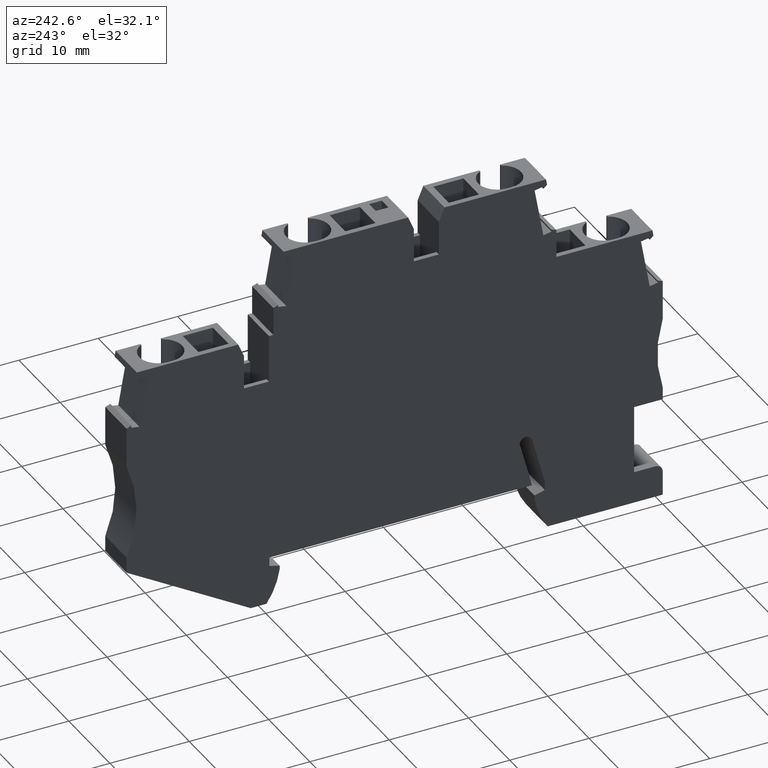
[diagram: clean part render]
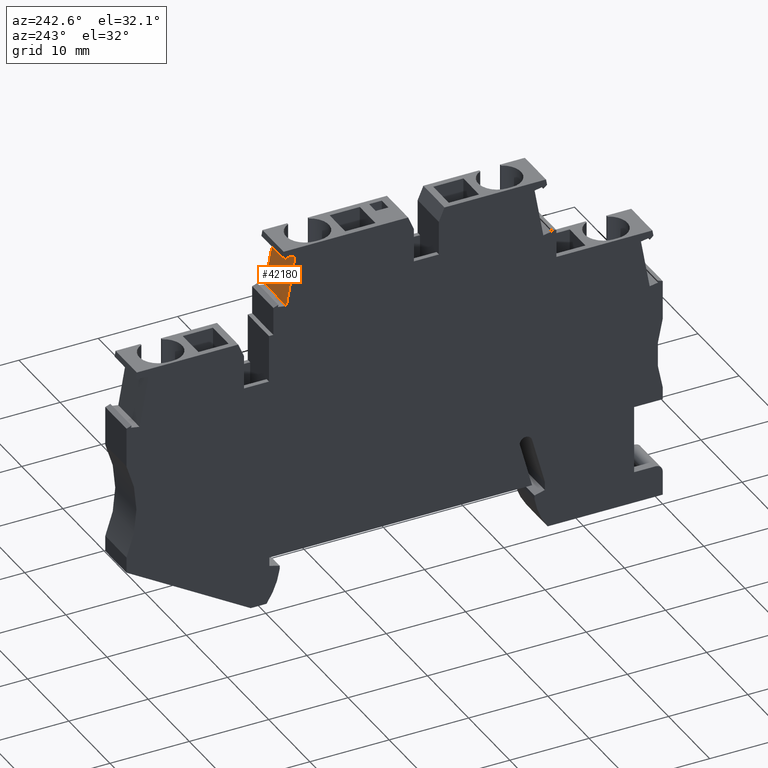
[diagram: same view with one face highlighted and labeled with its STEP entity id]
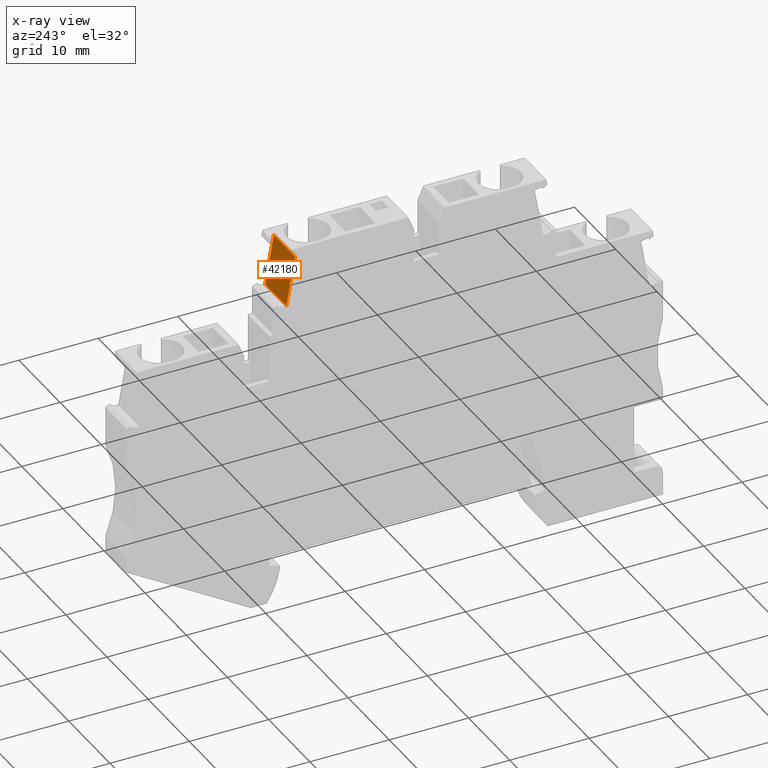
[diagram: x-ray of the same camera — body ghosted, the highlighted face saturated]
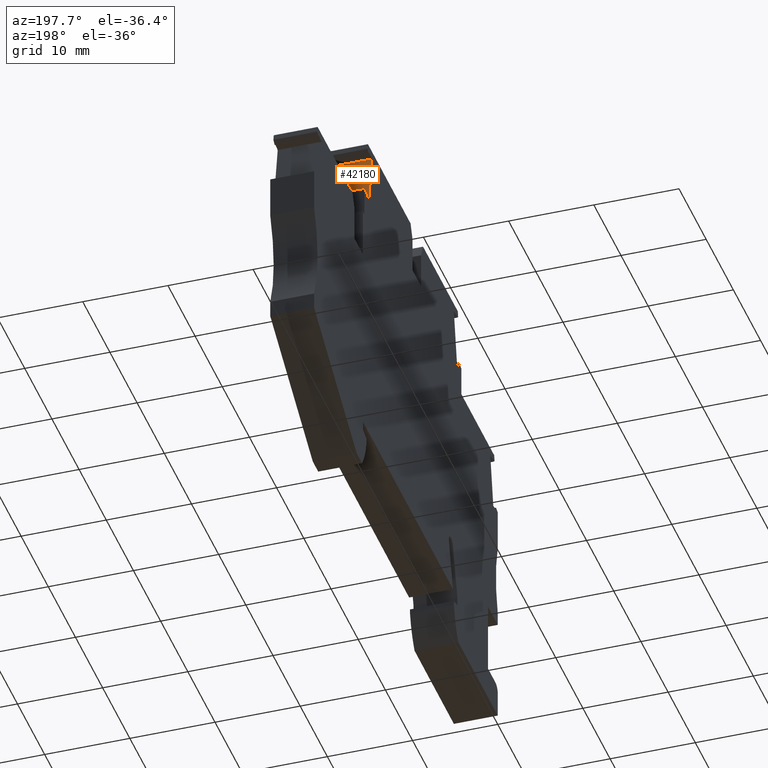
[diagram: same view with one face highlighted and labeled with its STEP entity id]
A machine part, auxiliary view. The second image highlights one B-rep face of the part: STEP entity #42180.
The next image is the same camera in x-ray: the body ghosted, the highlighted face saturated — about 0% of this face is hidden behind the body in this view.
A second angle (auxiliary view) of the same face is appended — the face is thin or edge-on in the first view.
In plain terms, the highlighted planar face has unit normal (-0, -0.9848, -0.1736).
Its self-contained STEP definition (entity closure, byte-faithful):
#2380=CARTESIAN_POINT('',(182.738770699075,35.0794222189983,48.52));
#2390=VERTEX_POINT('',#2380);
#2420=CARTESIAN_POINT('',(191.600236734,-15.176449,48.52));
#2430=DIRECTION('',(0.173648177667046,-0.984807753012188,0.));
#2440=VECTOR('',#2430,1.);
#2450=LINE('',#2420,#2440);
#2460=CARTESIAN_POINT('',(181.640445975331,41.3083312568009,48.52));
#2470=VERTEX_POINT('',#2460);
#2480=EDGE_CURVE('',#2470,#2390,#2450,.T.);
#41880=CARTESIAN_POINT('',(181.727270064164,40.8159273802949,53.67));
#41890=DIRECTION('',(-0.984807753012188,-0.173648177667046,-0.));
#41900=DIRECTION('',(-0.173648177667046,0.984807753012188,0.));
#41910=AXIS2_PLACEMENT_3D('',#41880,#41890,#41900);
#41920=PLANE('',#41910);
#41930=CARTESIAN_POINT('',(191.600236734,-15.176449,53.67));
#41940=DIRECTION('',(0.173648177667046,-0.984807753012188,0.));
#41950=VECTOR('',#41940,1.);
#41960=LINE('',#41930,#41950);
#41970=CARTESIAN_POINT('',(181.640445975331,41.3083312568009,53.67));
#41980=VERTEX_POINT('',#41970);
#41990=CARTESIAN_POINT('',(182.738770699075,35.0794222189983,53.67));
#42000=VERTEX_POINT('',#41990);
#42010=EDGE_CURVE('',#41980,#42000,#41960,.T.);
#42020=ORIENTED_EDGE('',*,*,#42010,.T.);
#42030=CARTESIAN_POINT('',(181.640445975331,41.3083312568009,53.67));
#42040=DIRECTION('',(0.,0.,-1.));
#42050=VECTOR('',#42040,1.);
#42060=LINE('',#42030,#42050);
#42070=EDGE_CURVE('',#41980,#2470,#42060,.T.);
#42080=ORIENTED_EDGE('',*,*,#42070,.F.);
#42090=ORIENTED_EDGE('',*,*,#2480,.F.);
#42100=CARTESIAN_POINT('',(182.738770699075,35.0794222189983,53.67));
#42110=DIRECTION('',(0.,0.,-1.));
#42120=VECTOR('',#42110,1.);
#42130=LINE('',#42100,#42120);
#42140=EDGE_CURVE('',#42000,#2390,#42130,.T.);
#42150=ORIENTED_EDGE('',*,*,#42140,.T.);
#42160=EDGE_LOOP('',(#42150,#42090,#42080,#42020));
#42170=FACE_OUTER_BOUND('',#42160,.T.);
#42180=ADVANCED_FACE('',(#42170),#41920,.F.);